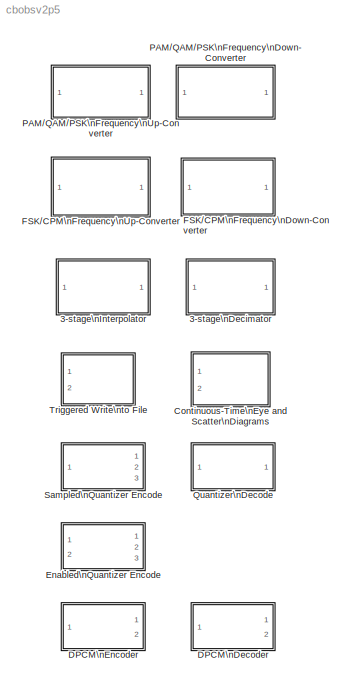
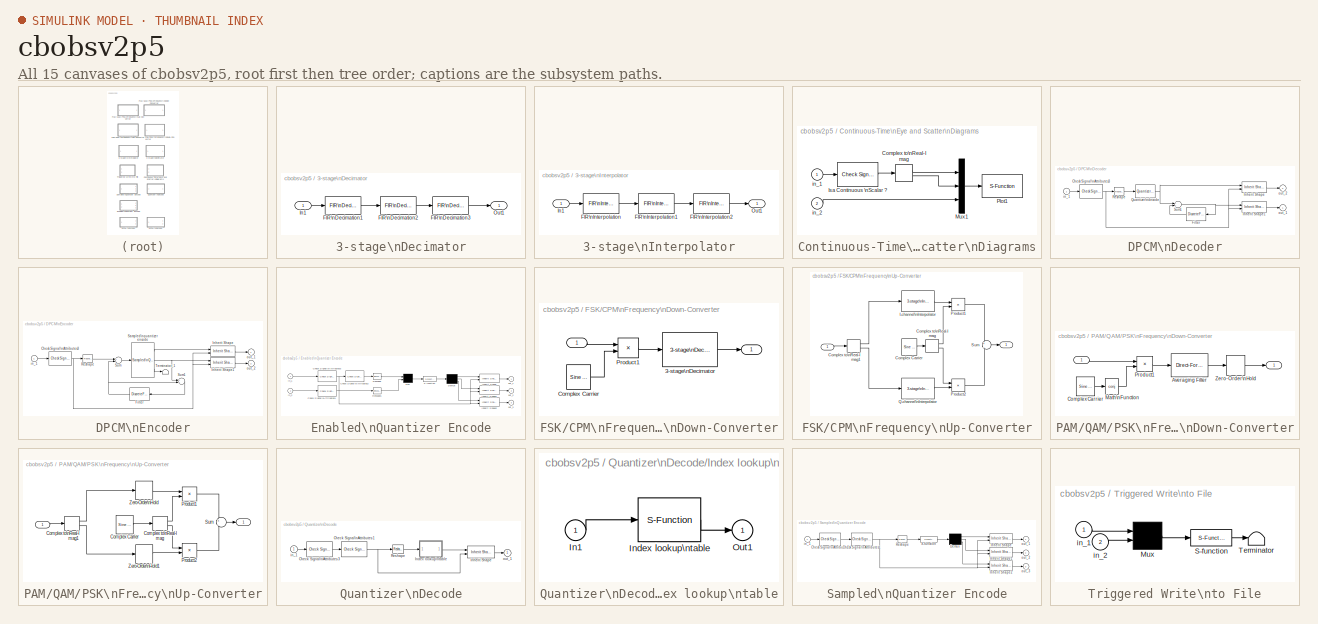
[diagram: thumbnail index - all 15 canvases of the model, root first then tree order]
MODEL cbobsv2p5
KIND library
BLOCK [SubSystem] 3-stage\nDecimator
  MaskCallbackString = ||
  MaskDescription = Performs decimation on the input signal.  The block uses multi-stage FIR filtering to eliminate aliasing, because using multiple stages is more efficient than using a single stage.\n\nFor most efficient results, large decimation factors should have at least three factors.
  MaskDisplay = disp('3-stage\\nDecimator')
  MaskEnableString = on,on,on
  MaskIconFrame = on
  MaskIconOpaque = on
  MaskIconRotate = none
  MaskIconUnits = autoscale
  MaskInitialization = dec_params = commblkdecimtr(gcb,'init');
  MaskPromptString = Decimation factor:|Input sample time (s):|Maximum signal frequency (Hz):
  MaskSelfModifiable = on
  MaskStyleString = edit,edit,edit
  MaskToolTipString = on,on,on
  MaskTunableValueString = off,off,off
  MaskType = 3-stage Decimator
  MaskValueString = 10|1/10000|450
  MaskVarAliasString = ,,
  MaskVariables = decFactor=@1;Tin=@2;Fmax=@3;
  MaskVisibilityString = on,on,on
  Ports = [1, 1]
  TreatAsAtomicUnit = off
BLOCK [Reference] 3-stage\nDecimator/FIR\nDecimation1  REF=dspmlti3/FIR\nDecimation
  D = dec_params.decFact1
  Ports = [1, 1]
  SourceBlock = dspmlti3/FIR\nDecimation
  SourceType = FIR Decimation
  framing = Maintain input frame size
  h = remez(dec_params.order1, [0 dec_params.Fpass1 dec_params.Fstop1 1], [1 1 0 0])
  outputBufInitCond = 0
BLOCK [Reference] 3-stage\nDecimator/FIR\nDecimation2  REF=dspmlti3/FIR\nDecimation
  D = dec_params.decFact2
  Ports = [1, 1]
  SourceBlock = dspmlti3/FIR\nDecimation
  SourceType = FIR Decimation
  framing = Maintain input frame size
  h = remez(dec_params.order2, [0 dec_params.Fpass2 dec_params.Fstop2 1], [1 1 0 0])
  outputBufInitCond = 0
BLOCK [Reference] 3-stage\nDecimator/FIR\nDecimation3  REF=dspmlti3/FIR\nDecimation
  D = dec_params.decFact3
  Ports = [1, 1]
  SourceBlock = dspmlti3/FIR\nDecimation
  SourceType = FIR Decimation
  framing = Maintain input frame size
  h = remez(dec_params.order3, [0 dec_params.Fpass3 dec_params.Fstop3 1], [1 1 0 0])
  outputBufInitCond = 0
BLOCK [Inport] 3-stage\nDecimator/In1
BLOCK [Outport] 3-stage\nDecimator/Out1
BLOCK [SubSystem] 3-stage\nInterpolator
  MaskCallbackString = ||
  MaskDescription = Performs a interpolation on the input signal.  The block uses multi-stage FIR filtering to eliminate spectral copies because using multiple stages is more efficient than using a single stage.\n\nFor most efficient results, large interpolation factors should have at least three factors.
  MaskDisplay = disp('3-stage\\n Interpolator')
  MaskEnableString = on,on,on
  MaskIconFrame = on
  MaskIconOpaque = on
  MaskIconRotate = none
  MaskIconUnits = autoscale
  MaskInitialization = int_params = commblkintrpltr(gcb,'init');
  MaskPromptString = Interpolation factor:|Input sample time (s):|Maximum signal frequency (Hz):
  MaskSelfModifiable = on
  MaskStyleString = edit,edit,edit
  MaskToolTipString = on,on,on
  MaskTunableValueString = off,off,off
  MaskType = 3-stage Interpolator
  MaskValueString = 10|1/1000|450
  MaskVarAliasString = ,,
  MaskVariables = intFactor=@1;Tin=@2;Fmax=@3;
  MaskVisibilityString = on,on,on
  Ports = [1, 1]
  TreatAsAtomicUnit = off
BLOCK [Reference] 3-stage\nInterpolator/FIR\nInterpolation  REF=dspmlti3/FIR\nInterpolation
  L = int_params.intFact1
  Ports = [1, 1]
  SourceBlock = dspmlti3/FIR\nInterpolation
  SourceType = FIR Interpolation
  framing = Maintain input frame size
  h = remez(int_params.order1, [0 int_params.Fpass1 int_params.Fstop1 1], [1 1 0 0]) * int_params.intFact1
  outputBufInitCond = 0
BLOCK [Reference] 3-stage\nInterpolator/FIR\nInterpolation1  REF=dspmlti3/FIR\nInterpolation
  L = int_params.intFact2
  Ports = [1, 1]
  SourceBlock = dspmlti3/FIR\nInterpolation
  SourceType = FIR Interpolation
  framing = Maintain input frame size
  h = remez(int_params.order2, [0 int_params.Fpass2 int_params.Fstop2 1], [1 1 0 0]) * int_params.intFact2
  outputBufInitCond = 0
BLOCK [Reference] 3-stage\nInterpolator/FIR\nInterpolation2  REF=dspmlti3/FIR\nInterpolation
  L = int_params.intFact3
  Ports = [1, 1]
  SourceBlock = dspmlti3/FIR\nInterpolation
  SourceType = FIR Interpolation
  framing = Maintain input frame size
  h = remez(int_params.order3, [0 int_params.Fpass3 int_params.Fstop3 1], [1 1 0 0]) * int_params.intFact3
  outputBufInitCond = 0
BLOCK [Inport] 3-stage\nInterpolator/In1
BLOCK [Outport] 3-stage\nInterpolator/Out1
BLOCK [SubSystem] Continuous-Time\nEye and Scatter\nDiagrams
  CopyFcn = eyediasi2([],[],[],'CopyBlock')
  DeleteFcn = eyediasi2([],[],[],'DeleteBlock')
  LoadFcn = eyediasi2([],[],[],'LoadBlock')
  MaskCallbackString = ||||commblkeyescatcont(gcb,'cbDiagram_type');|||
  MaskDescription = Create an eye diagram with or without a scatter diagram or an X-Y diagram depending on Diagram type parameter.  Use the trigger input to determine the decision time for the scatter plot.
  MaskDisplay = plot(0,0,100,100,[5 45 45 5 5 5 5+40*[0:1/15:1] 5+40*[1:-1/15:0] 5+40*[0:1/15:1] 5+40*[1:-1/15:0]], [35 35 95 95 35 65 sin([0:1/15:1]*pi)*25+65 sin(-[0:1/15:1]*pi)*25+65 sin([0:1/15:1]*pi)*17+65 sin(-[0:1/15:1]*pi)*18+65]*.95+3 ,a,b, NaN, NaN, x+50,y+37,x+50,y+52,x+50,y+67,x+50,y+82, x+62,y+37,x+62,y+52,x+62,y+67,x+62,y+82, x+73,y+37,x+73,y+52,x+73,y+67,x+73,y+82, x+85,y+37,x+85,y+52,x+85,y+67,x+8...<+44ch>
  MaskEnableString = on,on,on,on,on,on,off,off
  MaskHelp = helpview(commbhelp)
  MaskIconFrame = on
  MaskIconOpaque = on
  MaskIconRotate = port
  MaskIconUnits = autoscale
  MaskInitialization = [a,b]=trigicon(0,25,get_param(gcb,'orientation'),2);\nx = [2 8 5 2 8 5 5 5];\ny = [2 8 5 8 2 5 8 2];\n[eStr outparams] = commblkeyescatcont(gcb,'init');\nif(eStr .ecode ~= 0)\n   error(eStr .emsg);\nend\n
  MaskPromptString = Trace period:|Trace offset:|Lower and upper bounds of diagram (2-element vector):|Number of saved traces:|Diagram type:|Line type for eye diagram:|Line type for scatter diagram:|Line type for X-Y diagram:
  MaskSelfModifiable = on
  MaskStyleString = edit,edit,edit,edit,popup(Eye Diagram|Scatter Diagram|Eye and Scatter Diagrams|X-Y Diagram|Eye and X-Y Diagrams),edit,edit,edit
  MaskToolTipString = on,on,on,on,on,on,on,on
  MaskTunableValueString = off,off,off,off,off,off,off,off
  MaskType = Continuous-Time Eye and Scatter Diagrams
  MaskValueString = 1|0|[-1.5 1.5]|5|Eye Diagram|b-/r-|b.|b-
  MaskVarAliasString = ,,,,,,,
  MaskVariables = time_range=@1;time_offset=@2;boundary=@3;kept_length=@4;diagram_type=&5;eye_line=&6;scatter_line=&7;two_d_line=&8;
  MaskVisibilityString = on,on,on,on,on,on,off,off
  NameChangeFcn = eyediasi2([],[],[],'NameChange')
  Ports = [2]
  StartFcn = eyediasi2([],[],[],'Start')
  StopFcn = eyediasi2([],[],[],'Stop')
  TreatAsAtomicUnit = off
BLOCK [ComplexToRealImag] Continuous-Time\nEye and Scatter\nDiagrams/Complex to\nReal-Imag
  Output = Real and imag
  Ports = [1, 2]
BLOCK [Reference] Continuous-Time\nEye and Scatter\nDiagrams/Isa Continuous \nScalar ?  REF=dspsigattribs/Check Signal\nAttributes
  Complexity = Ignore
  DatatypeCheckMethod = Is not...
  DatatypeGeneral = Boolean
  Dimensions = Scalar (1-D or 2-D)
  DimsCheckMethod = Is...
  DtypeFixedSpecific = Any fixed-point
  DtypeFloatSpecific = Any floating-point
  DtypeIntSpecific = Any integer
  Frame = Sample-based
  Ports = [1, 1]
  SampleMode = Continuous
  SigAttribCheckMethod = Does not match attributes exactly
  SourceBlock = dspsigattribs/Check Signal\nAttributes
  SourceType = Check Signal Attributes
BLOCK [Mux] Continuous-Time\nEye and Scatter\nDiagrams/Mux1
  DisplayOption = bar
  Inputs = 3
  Ports = [3, 1]
BLOCK [S-Function] Continuous-Time\nEye and Scatter\nDiagrams/Plot1
  FunctionName = eyediasi2
  MaskIconFrame = on
  MaskIconOpaque = on
  MaskIconRotate = none
  MaskIconUnits = autoscale
  MaskSelfModifiable = on
  Parameters = time_range, time_offset, boundary, kept_length, diagram_type, eye_line, scatter_line, two_d_line
  Ports = [1]
BLOCK [Inport] Continuous-Time\nEye and Scatter\nDiagrams/in_1
BLOCK [Inport] Continuous-Time\nEye and Scatter\nDiagrams/in_2
  Port = 2
BLOCK [SubSystem] DPCM\nDecoder
  MaskCallbackString = |||
  MaskDescription = Input the DPCM coded index. Output DPCM decodes to the 1st outport and quantization decode to the 2nd outport.\n\nThe input must be a scalar signal.
  MaskDisplay = disp('DPCM\\ndecoder')
  MaskEnableString = on,on,on,on
  MaskHelp = helpview(commbhelp)
  MaskIconFrame = on
  MaskIconOpaque = on
  MaskIconRotate = none
  MaskIconUnits = autoscale
  MaskPromptString = Predictor numerator:|Predictor denominator:|Quantization codebook:|Sample time:
  MaskStyleString = edit,edit,edit,edit
  MaskToolTipString = on,on,on,on
  MaskTunableValueString = on,on,on,on
  MaskType = DPCM Decoder
  MaskValueString = [0 .9963]|1|[-.0848 -.029 .0298 .0853]|.1
  MaskVarAliasString = ,,,
  MaskVariables = num=@1;den=@2;codebook=@3;sample_time=@4;
  MaskVisibilityString = on,on,on,on
  Ports = [1, 2]
  TreatAsAtomicUnit = off
BLOCK [Reference] DPCM\nDecoder/Check Signal\nAttributes3  REF=dspsigattribs/Check Signal\nAttributes
  Complexity = Ignore
  DatatypeCheckMethod = Ignore
  DatatypeGeneral = Boolean
  Dimensions = Scalar (1-D or 2-D)
  DimsCheckMethod = Is...
  DtypeFixedSpecific = Any fixed-point
  DtypeFloatSpecific = Any floating-point
  DtypeIntSpecific = Any integer
  Frame = Ignore
  Ports = [1, 1]
  SampleMode = Ignore
  SigAttribCheckMethod = Does not match attributes exactly
  SourceBlock = dspsigattribs/Check Signal\nAttributes
  SourceType = Check Signal Attributes
BLOCK [DiscreteFilter] DPCM\nDecoder/Filter
  Denominator = den
  MaskIconFrame = on
  MaskIconOpaque = on
  MaskIconRotate = none
  MaskIconUnits = autoscale
  Numerator = num
  SampleTime = sample_time
BLOCK [Reference] DPCM\nDecoder/Inherit Shape  REF=commblksprivate/Inherit Shape
  Ports = [2, 1]
  SourceBlock = commblksprivate/Inherit Shape
  SourceType = Inherit Shape
BLOCK [Reference] DPCM\nDecoder/Inherit Shape1  REF=commblksprivate/Inherit Shape
  Ports = [2, 1]
  SourceBlock = commblksprivate/Inherit Shape
  SourceType = Inherit Shape
BLOCK [Reference] DPCM\nDecoder/Quantizer\ndecode  REF=commsrccod2/Quantizer\nDecode
  Ports = [1, 1]
  SourceBlock = commsrccod2/Quantizer\nDecode
  SourceType = Quantizer Decode
  codebook = codebook
BLOCK [Reference] DPCM\nDecoder/Reshape  REF=simulink3/Signals\n& Systems/Reshape
  OutputDimensionality = 1-D array
  OutputDimensions = [1,1]
  Ports = [1, 1]
  SourceBlock = simulink3/Signals\n& Systems/Reshape
  SourceType = Reshape
BLOCK [Sum] DPCM\nDecoder/Sum1
  Ports = [2, 1]
BLOCK [Inport] DPCM\nDecoder/in_1
BLOCK [Outport] DPCM\nDecoder/out_1
  InitialOutput = 0
BLOCK [Outport] DPCM\nDecoder/out_2
  InitialOutput = 0
  Port = 2
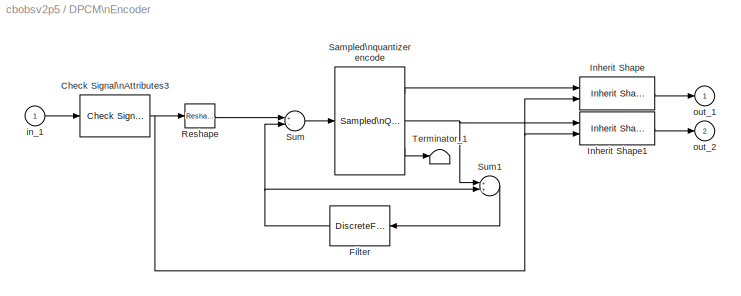
BLOCK [SubSystem] DPCM\nEncoder
  MaskCallbackString = ||||
  MaskDescription = Output the DPCM encoded index to the 1st outport and the quantization recovered value to the 2nd outport.\n\nThe input must be a scalar signal.
  MaskDisplay = disp('DPCM\\nencoder')
  MaskEnableString = on,on,on,on,on
  MaskHelp = helpview(commbhelp)
  MaskIconFrame = on
  MaskIconOpaque = on
  MaskIconRotate = none
  MaskIconUnits = autoscale
  MaskPromptString = Predictor numerator:|Predictor denominator:|Quantization partition:|Quantization codebook:|Sample time:
  MaskStyleString = edit,edit,edit,edit,edit
  MaskToolTipString = on,on,on,on,on
  MaskTunableValueString = on,on,on,on,on
  MaskType = DPCM Encoder
  MaskValueString = [0 .9963]|1|[-.0569 .0004 .0576]|[-.0848 -.029 .0298 .0853]|.1
  MaskVarAliasString = ,,,,
  MaskVariables = num=@1;den=@2;partition=@3;codebook=@4;sample_time=@5;
  MaskVisibilityString = on,on,on,on,on
  Ports = [1, 2]
  TreatAsAtomicUnit = off
BLOCK [Reference] DPCM\nEncoder/Check Signal\nAttributes3  REF=dspsigattribs/Check Signal\nAttributes
  Complexity = Ignore
  DatatypeCheckMethod = Ignore
  DatatypeGeneral = Boolean
  Dimensions = Scalar (1-D or 2-D)
  DimsCheckMethod = Is...
  DtypeFixedSpecific = Any fixed-point
  DtypeFloatSpecific = Any floating-point
  DtypeIntSpecific = Any integer
  Frame = Ignore
  Ports = [1, 1]
  SampleMode = Ignore
  SigAttribCheckMethod = Does not match attributes exactly
  SourceBlock = dspsigattribs/Check Signal\nAttributes
  SourceType = Check Signal Attributes
BLOCK [DiscreteFilter] DPCM\nEncoder/Filter
  Denominator = den
  MaskIconFrame = on
  MaskIconOpaque = on
  MaskIconRotate = none
  MaskIconUnits = autoscale
  Numerator = num
  SampleTime = sample_time
BLOCK [Reference] DPCM\nEncoder/Inherit Shape  REF=commblksprivate/Inherit Shape
  Ports = [2, 1]
  SourceBlock = commblksprivate/Inherit Shape
  SourceType = Inherit Shape
BLOCK [Reference] DPCM\nEncoder/Inherit Shape1  REF=commblksprivate/Inherit Shape
  Ports = [2, 1]
  SourceBlock = commblksprivate/Inherit Shape
  SourceType = Inherit Shape
BLOCK [Reference] DPCM\nEncoder/Reshape  REF=simulink3/Signals\n& Systems/Reshape
  OutputDimensionality = 1-D array
  OutputDimensions = [1,1]
  Ports = [1, 1]
  SourceBlock = simulink3/Signals\n& Systems/Reshape
  SourceType = Reshape
BLOCK [Reference] DPCM\nEncoder/Sampled\nquantizer encode  REF=commsrccod2/Sampled\nQuantizer Encode
  Ports = [1, 3]
  SourceBlock = commsrccod2/Sampled\nQuantizer Encode
  SourceType = Sampled Quantizer Encode
  codebook = codebook
  n = 1
  partition = partition
  sample_time = sample_time
BLOCK [Sum] DPCM\nEncoder/Sum
  Inputs = +-
  Ports = [2, 1]
BLOCK [Sum] DPCM\nEncoder/Sum1
  Ports = [2, 1]
BLOCK [Terminator] DPCM\nEncoder/Terminator_1
BLOCK [Inport] DPCM\nEncoder/in_1
BLOCK [Outport] DPCM\nEncoder/out_1
  InitialOutput = 0
BLOCK [Outport] DPCM\nEncoder/out_2
  InitialOutput = 0
  Port = 2
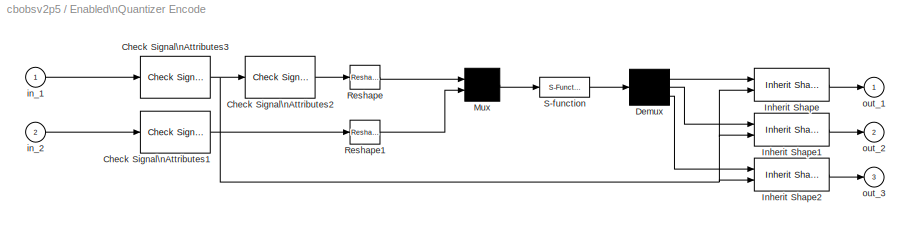
BLOCK [SubSystem] Enabled\nQuantizer Encode
  MaskCallbackString = ||
  MaskDescription = Triggered by the 2nd input signal, this block quantizes an analog signal to (1) digital signal, (2) quantization value, and (3) distortion.\n\nThe first input can be either a scalar, a sample-based vector, or a frame-based row vector.  Each vector element is processed independently.\n\nThe trigger input must be a scalar.
  MaskDisplay = plot(0,0,100,100,x,y);disp('Quantizer')
  MaskEnableString = on,on,on
  MaskHelp = helpview(commbhelp)
  MaskIconFrame = on
  MaskIconOpaque = on
  MaskIconRotate = none
  MaskIconUnits = autoscale
  MaskInitialization = [x,y]=trigicon(0,25,get_param(gcb,'orientation'),1);\n
  MaskPromptString = Quantization partition:|Quantization codebook:|Input signal vector length:
  MaskStyleString = edit,edit,edit
  MaskToolTipString = on,on,on
  MaskTunableValueString = on,on,on
  MaskType = Enabled Quantizer Encode
  MaskValueString = [-.75 -.25 .25 .75]|[-.825 -.5 0 .5 .825]|2
  MaskVarAliasString = ,,
  MaskVariables = partition=@1;codebook=@2;n=@3;
  MaskVisibilityString = on,on,on
  Ports = [2, 3]
  TreatAsAtomicUnit = off
BLOCK [Reference] Enabled\nQuantizer Encode/Check Signal\nAttributes1  REF=dspsigattribs/Check Signal\nAttributes
  Complexity = Ignore
  DatatypeCheckMethod = Ignore
  DatatypeGeneral = Boolean
  Dimensions = Scalar (1-D or 2-D)
  DimsCheckMethod = Is...
  DtypeFixedSpecific = Any fixed-point
  DtypeFloatSpecific = Any floating-point
  DtypeIntSpecific = Any integer
  Frame = Ignore
  Ports = [1, 1]
  SampleMode = Ignore
  SigAttribCheckMethod = Does not match attributes exactly
  SourceBlock = dspsigattribs/Check Signal\nAttributes
  SourceType = Check Signal Attributes
BLOCK [Reference] Enabled\nQuantizer Encode/Check Signal\nAttributes2  REF=dspsigattribs/Check Signal\nAttributes
  Complexity = Ignore
  DatatypeCheckMethod = Ignore
  DatatypeGeneral = Boolean
  Dimensions = Column vector (2-D)
  DimsCheckMethod = Is...
  DtypeFixedSpecific = Any fixed-point
  DtypeFloatSpecific = Any floating-point
  DtypeIntSpecific = Any integer
  Frame = Frame-based
  Ports = [1, 1]
  SampleMode = Ignore
  SigAttribCheckMethod = Matches attributes exactly
  SourceBlock = dspsigattribs/Check Signal\nAttributes
  SourceType = Check Signal Attributes
BLOCK [Reference] Enabled\nQuantizer Encode/Check Signal\nAttributes3  REF=dspsigattribs/Check Signal\nAttributes
  Complexity = Ignore
  DatatypeCheckMethod = Ignore
  DatatypeGeneral = Boolean
  Dimensions = Full matrix (2-D)
  DimsCheckMethod = Is...
  DtypeFixedSpecific = Any fixed-point
  DtypeFloatSpecific = Any floating-point
  DtypeIntSpecific = Any integer
  Frame = Ignore
  Ports = [1, 1]
  SampleMode = Ignore
  SigAttribCheckMethod = Matches attributes exactly
  SourceBlock = dspsigattribs/Check Signal\nAttributes
  SourceType = Check Signal Attributes
BLOCK [Demux] Enabled\nQuantizer Encode/Demux
  Outputs = [n n n]
  Ports = [1, 3]
BLOCK [Reference] Enabled\nQuantizer Encode/Inherit Shape  REF=commblksprivate/Inherit Shape
  Ports = [2, 1]
  SourceBlock = commblksprivate/Inherit Shape
  SourceType = Inherit Shape
BLOCK [Reference] Enabled\nQuantizer Encode/Inherit Shape1  REF=commblksprivate/Inherit Shape
  Ports = [2, 1]
  SourceBlock = commblksprivate/Inherit Shape
  SourceType = Inherit Shape
BLOCK [Reference] Enabled\nQuantizer Encode/Inherit Shape2  REF=commblksprivate/Inherit Shape
  Ports = [2, 1]
  SourceBlock = commblksprivate/Inherit Shape
  SourceType = Inherit Shape
BLOCK [Mux] Enabled\nQuantizer Encode/Mux
  Inputs = [n 1]
  Ports = [2, 1]
BLOCK [Reference] Enabled\nQuantizer Encode/Reshape  REF=simulink3/Signals\n& Systems/Reshape
  OutputDimensionality = 1-D array
  OutputDimensions = [1,1]
  Ports = [1, 1]
  SourceBlock = simulink3/Signals\n& Systems/Reshape
  SourceType = Reshape
BLOCK [Reference] Enabled\nQuantizer Encode/Reshape1  REF=simulink3/Signals\n& Systems/Reshape
  OutputDimensionality = 1-D array
  OutputDimensions = [1,1]
  Ports = [1, 1]
  SourceBlock = simulink3/Signals\n& Systems/Reshape
  SourceType = Reshape
BLOCK [S-Function] Enabled\nQuantizer Encode/S-function
  FunctionName = simquan
  Parameters = n, partition, codebook
  Ports = [1, 1]
BLOCK [Inport] Enabled\nQuantizer Encode/in_1
BLOCK [Inport] Enabled\nQuantizer Encode/in_2
  Port = 2
BLOCK [Outport] Enabled\nQuantizer Encode/out_1
  InitialOutput = 0
BLOCK [Outport] Enabled\nQuantizer Encode/out_2
  InitialOutput = 0
  Port = 2
BLOCK [Outport] Enabled\nQuantizer Encode/out_3
  InitialOutput = 0
  Port = 3
BLOCK [SubSystem] FSK//CPM\nFrequency\nDown-Converter
  MaskCallbackString = commblkfskdowncon(gcb,'cbModType');|||||||
  MaskDescription = The FSK/CPM Frequency Down-Converter translates the frequency of the passband input signal to complex baseband.  It also decimates the signal in order to prevent aliasing.\n\nThe input signal must be a sample-based scalar.
  MaskDisplay = disp('FSK/CPM\\nFrequency\\nDown-Converter');
  MaskEnableString = on,on,on,on,on,on,on,on
  MaskIconFrame = on
  MaskIconOpaque = on
  MaskIconRotate = none
  MaskIconUnits = autoscale
  MaskInitialization = Fmax = commblkfskdowncon(gcb,'init');
  MaskPromptString = Modulation type:|M-ary number:|Frequency separation (Hz):|Symbol period (s):|Carrier frequency (Hz):|Carrier phase (rad):|Input sample time (s):|Output sample time (s):
  MaskSelfModifiable = on
  MaskStyleString = popup(FSK|CPM),edit,edit,edit,edit,edit,edit,edit
  MaskToolTipString = on,on,on,on,on,on,on,on
  MaskTunableValueString = off,off,off,off,off,off,off,off
  MaskType = FSK/CPM Frequency Down-Converter
  MaskValueString = FSK|8|100|1/100|3000|0|1/10000|1/1000
  MaskVarAliasString = ,,,,,,,
  MaskVariables = modType=&1;M=@2;freqSep=@3;td=@4;Fc=@5;Ph=@6;Tin=@7;Tout=@8;
  MaskVisibilityString = on,on,on,on,on,on,on,on
  Ports = [1, 1]
  TreatAsAtomicUnit = off
BLOCK [Inport] FSK//CPM\nFrequency\nDown-Converter/ 
  SampleTime = Tin
BLOCK [Outport] FSK//CPM\nFrequency\nDown-Converter/  
BLOCK [Reference] FSK//CPM\nFrequency\nDown-Converter/3-stage\nDecimator  REF=commblksprivate/3-stage\nDecimator
  Fmax = Fmax
  Ports = [1, 1]
  SourceBlock = commblksprivate/3-stage\nDecimator
  SourceType = 3-stage Decimator
  Tin = Tin
  decFactor = Tout / Tin
BLOCK [Reference] FSK//CPM\nFrequency\nDown-Converter/Complex Carrier  REF=dspsrcs4/Sine Wave
  Amplitude = sqrt(2)
  CompMethod = Trigonometric fcn
  Frequency = -Fc
  OutComplex = Complex
  Phase = -Ph
  Ports = [0, 1]
  ResetState = Restart at time zero
  SampleMode = Discrete
  SampleTime = Tin
  SamplesPerFrame = 1
  SourceBlock = dspsrcs4/Sine Wave
  SourceType = Sine Wave
  TableSize = Speed
  dType = Double
BLOCK [Product] FSK//CPM\nFrequency\nDown-Converter/Product1
  Ports = [2, 1]
  RndMeth = Floor
BLOCK [SubSystem] FSK//CPM\nFrequency\nUp-Converter
  MaskCallbackString = commblkfskupcon(gcb,'cbModType');|||||||
  MaskDescription = The FSK/CPM Frequency Up-Converter translates the frequency of the baseband input FSK or CPM signal to the carrier frequency.\nIt also interpolates the signal in order to prevent aliasing.\n\nThe input signal must be a sample-based scalar.
  MaskDisplay = disp('FSK/CPM\\nFrequency\\nUp-Converter');
  MaskEnableString = on,on,on,on,on,on,on,on
  MaskIconFrame = on
  MaskIconOpaque = on
  MaskIconRotate = none
  MaskIconUnits = autoscale
  MaskInitialization = Fmax = commblkfskupcon(gcb,'init');\n
  MaskPromptString = Modulation type:|M-ary number:|Frequency separation (Hz):|Symbol period (s):|Carrier frequency (Hz):|Carrier phase (rad):|Input sample time (s):|Output sample time (s):
  MaskSelfModifiable = on
  MaskStyleString = popup(FSK|CPM),edit,edit,edit,edit,edit,edit,edit
  MaskToolTipString = on,on,on,on,on,on,on,on
  MaskTunableValueString = off,off,off,off,off,off,off,off
  MaskType = FSK/CPM Frequency Up-Converter
  MaskValueString = FSK|8|100|1/100|3000|0|1/1000|1/10000
  MaskVarAliasString = ,,,,,,,
  MaskVariables = modType=&1;M=@2;freqSep=@3;td=@4;Fc=@5;Ph=@6;Tin=@7;Tout=@8;
  MaskVisibilityString = on,on,on,on,on,on,on,on
  Ports = [1, 1]
  TreatAsAtomicUnit = off
BLOCK [Inport] FSK//CPM\nFrequency\nUp-Converter/ 
BLOCK [Outport] FSK//CPM\nFrequency\nUp-Converter/  
BLOCK [Reference] FSK//CPM\nFrequency\nUp-Converter/Complex Carrier  REF=dspsrcs4/Sine Wave
  Amplitude = sqrt(2)
  CompMethod = Trigonometric fcn
  Frequency = Fc
  OutComplex = Complex
  Phase = Ph
  Ports = [0, 1]
  ResetState = Restart at time zero
  SampleMode = Discrete
  SampleTime = Tout
  SamplesPerFrame = 1
  SourceBlock = dspsrcs4/Sine Wave
  SourceType = Sine Wave
  TableSize = Speed
  dType = Double
BLOCK [ComplexToRealImag] FSK//CPM\nFrequency\nUp-Converter/Complex to\nReal-Imag
  Output = Real and imag
  Ports = [1, 2]
BLOCK [ComplexToRealImag] FSK//CPM\nFrequency\nUp-Converter/Complex to\nReal-Imag1
  Output = Real and imag
  Ports = [1, 2]
BLOCK [Reference] FSK//CPM\nFrequency\nUp-Converter/I-channel\nInterpolator  REF=commblksprivate/3-stage\nInterpolator
  Fmax = Fmax
  Ports = [1, 1]
  SourceBlock = commblksprivate/3-stage\nInterpolator
  SourceType = 3-stage Interpolator
  Tin = Tin
  intFactor = Tin / Tout
BLOCK [Product] FSK//CPM\nFrequency\nUp-Converter/Product1
  Ports = [2, 1]
  RndMeth = Floor
BLOCK [Product] FSK//CPM\nFrequency\nUp-Converter/Product2
  Ports = [2, 1]
  RndMeth = Floor
BLOCK [Reference] FSK//CPM\nFrequency\nUp-Converter/Q-channel\nInterpolator  REF=commblksprivate/3-stage\nInterpolator
  Fmax = Fmax
  Ports = [1, 1]
  SourceBlock = commblksprivate/3-stage\nInterpolator
  SourceType = 3-stage Interpolator
  Tin = Tin
  intFactor = Tin / Tout
BLOCK [Sum] FSK//CPM\nFrequency\nUp-Converter/Sum
  IconShape = round
  Inputs = +|-
  Ports = [2, 1]
BLOCK [SubSystem] PAM//QAM//PSK\nFrequency\nDown-Converter
  MaskCallbackString = |||
  MaskDescription = The PAM/QAM/PSK Frequency Down-Converter translates the frequency of the input signal to complex baseband.  It also decimates the signal to a lower sampling frequency.\n\nThe input signal must be a sample-based scalar.
  MaskDisplay = disp('PAM/QAM/PSK\\nFrequency\\nDown-Converter');
  MaskEnableString = on,on,on,on
  MaskIconFrame = on
  MaskIconOpaque = on
  MaskIconRotate = none
  MaskIconUnits = autoscale
  MaskInitialization = if (Tin>=1/(2*(Fc+1/Tout))) error('The reciprocal of the input sample time must be greater than twice the sum of the carrier frequency and the reciprocal of the output sample time.'); end;\n\nif (Tout <= 1/Fc) error('The reciprocal of the output sample time must be less than the carrier frequency.'); end;\n\nif (Tin>=Tout) error('The input sample time must be less than the output sample time.'); e...<+5ch>
  MaskPromptString = Carrier frequency (Hz):|Carrier phase (rad):|Input sample time:|Output sample time:
  MaskStyleString = edit,edit,edit,edit
  MaskToolTipString = on,on,on,on
  MaskTunableValueString = on,on,on,on
  MaskType = PAM/QAM/PSK Frequency Down-Converter
  MaskValueString = 3000|0|1/8000|1/100
  MaskVarAliasString = ,,,
  MaskVariables = Fc=@1;Ph=@2;Tin=@3;Tout=@4;
  MaskVisibilityString = on,on,on,on
  Ports = [1, 1]
  TreatAsAtomicUnit = off
BLOCK [Inport] PAM//QAM//PSK\nFrequency\nDown-Converter/ 
  SampleTime = Tin
BLOCK [Outport] PAM//QAM//PSK\nFrequency\nDown-Converter/  
BLOCK [Reference] PAM//QAM//PSK\nFrequency\nDown-Converter/Averaging Filter  REF=dsparch3/Direct-Form II\nTranspose Filter
  Ports = [1, 1]
  SourceBlock = dsparch3/Direct-Form II\nTranspose Filter
  SourceType = Direct-Form II Transpose Filter
  den = 1
  ic = 0
  num = (Tin/Tout)*ones(1,floor(Tout/Tin))
BLOCK [Reference] PAM//QAM//PSK\nFrequency\nDown-Converter/Complex Carrier  REF=dspsrcs4/Sine Wave
  Amplitude = sqrt(2)
  CompMethod = Trigonometric fcn
  Frequency = Fc
  OutComplex = Complex
  Phase = Ph
  Ports = [0, 1]
  ResetState = Restart at time zero
  SampleMode = Discrete
  SampleTime = Tin
  SamplesPerFrame = 1
  SourceBlock = dspsrcs4/Sine Wave
  SourceType = Sine Wave
  TableSize = Speed
  dType = Double
BLOCK [Math] PAM//QAM//PSK\nFrequency\nDown-Converter/Math\nFunction
  Operator = conj
  Ports = [1, 1]
BLOCK [Product] PAM//QAM//PSK\nFrequency\nDown-Converter/Product1
  Ports = [2, 1]
  RndMeth = Floor
BLOCK [ZeroOrderHold] PAM//QAM//PSK\nFrequency\nDown-Converter/Zero-Order\nHold
  SampleTime = Tout
BLOCK [SubSystem] PAM//QAM//PSK\nFrequency\nUp-Converter
  MaskCallbackString = |||
  MaskDescription = The PAM/QAM/PSK Frequency Up-Converter translates the frequency of the baseband input signal to the carrier frequency.  It also resamples the signal to a higher sampling frequency.\n\nThe input signal must be a sample-based scalar.
  MaskDisplay = disp('PAM/QAM/PSK\\nFrequency\\nUp-Converter');
  MaskEnableString = on,on,on,on
  MaskIconFrame = on
  MaskIconOpaque = on
  MaskIconRotate = none
  MaskIconUnits = autoscale
  MaskInitialization = if (Tout>=1/(2*(Fc+1/Tin))) error('The reciprocal of the output sample time must be greater than twice the sum of the carrier frequency and the reciprocal of the input sample time.'); end;\n\nif (Tin <= 1/Fc) error('The reciprocal of the input sample time must be less than the carrier frequency.'); end;\n\nif (Tin<=Tout) error('The input sample time must be greater than the output sample time.'); ...<+6ch>
  MaskPromptString = Carrier frequency (Hz):|Carrier phase (rad):|Input sample time:|Output sample time:
  MaskStyleString = edit,edit,edit,edit
  MaskToolTipString = on,on,on,on
  MaskTunableValueString = on,on,on,on
  MaskType = PAM/QAM/PSK Frequency Up-Converter
  MaskValueString = 3000|0|1/100|1/8000
  MaskVarAliasString = ,,,
  MaskVariables = Fc=@1;Ph=@2;Tin=@3;Tout=@4;
  MaskVisibilityString = on,on,on,on
  Ports = [1, 1]
  TreatAsAtomicUnit = off
BLOCK [Inport] PAM//QAM//PSK\nFrequency\nUp-Converter/ 
BLOCK [Outport] PAM//QAM//PSK\nFrequency\nUp-Converter/  
BLOCK [Reference] PAM//QAM//PSK\nFrequency\nUp-Converter/Complex Carrier  REF=dspsrcs4/Sine Wave
  Amplitude = sqrt(2)
  CompMethod = Trigonometric fcn
  Frequency = Fc
  OutComplex = Complex
  Phase = Ph
  Ports = [0, 1]
  ResetState = Restart at time zero
  SampleMode = Discrete
  SampleTime = Tout
  SamplesPerFrame = 1
  SourceBlock = dspsrcs4/Sine Wave
  SourceType = Sine Wave
  TableSize = Speed
  dType = Double
BLOCK [ComplexToRealImag] PAM//QAM//PSK\nFrequency\nUp-Converter/Complex to\nReal-Imag
  Output = Real and imag
  Ports = [1, 2]
BLOCK [ComplexToRealImag] PAM//QAM//PSK\nFrequency\nUp-Converter/Complex to\nReal-Imag1
  Output = Real and imag
  Ports = [1, 2]
BLOCK [Product] PAM//QAM//PSK\nFrequency\nUp-Converter/Product1
  Ports = [2, 1]
  RndMeth = Floor
BLOCK [Product] PAM//QAM//PSK\nFrequency\nUp-Converter/Product2
  Ports = [2, 1]
  RndMeth = Floor
BLOCK [Sum] PAM//QAM//PSK\nFrequency\nUp-Converter/Sum
  IconShape = round
  Inputs = +|-
  Ports = [2, 1]
BLOCK [ZeroOrderHold] PAM//QAM//PSK\nFrequency\nUp-Converter/Zero-Order\nHold
  SampleTime = Tout
BLOCK [ZeroOrderHold] PAM//QAM//PSK\nFrequency\nUp-Converter/Zero-Order\nHold1
  SampleTime = Tout
BLOCK [SubSystem] Quantizer\nDecode
  MaskDescription = Output the value in the given codebook based on the input index value.\n\nThe input can be either a scalar, a sample-based vector, or a frame-based row vector.  This block processes each vector element independently.
  MaskDisplay = disp('Quantizer\\ndecode')
  MaskEnableString = on
  MaskHelp = helpview(commbhelp)
  MaskIconFrame = on
  MaskIconOpaque = on
  MaskIconRotate = none
  MaskIconUnits = autoscale
  MaskPromptString = Quantization codebook:
  MaskStyleString = edit
  MaskToolTipString = on
  MaskTunableValueString = on
  MaskType = Quantizer Decode
  MaskValueString = [-.825 -.5 0, .5 .825]
  MaskVariables = codebook=@1;
  MaskVisibilityString = on
  Ports = [1, 1]
  TreatAsAtomicUnit = off
BLOCK [Reference] Quantizer\nDecode/Check Signal\nAttributes1  REF=dspsigattribs/Check Signal\nAttributes
  Complexity = Ignore
  DatatypeCheckMethod = Ignore
  DatatypeGeneral = Boolean
  Dimensions = Column vector (2-D)
  DimsCheckMethod = Is...
  DtypeFixedSpecific = Any fixed-point
  DtypeFloatSpecific = Any floating-point
  DtypeIntSpecific = Any integer
  Frame = Frame-based
  Ports = [1, 1]
  SampleMode = Ignore
  SigAttribCheckMethod = Matches attributes exactly
  SourceBlock = dspsigattribs/Check Signal\nAttributes
  SourceType = Check Signal Attributes
BLOCK [Reference] Quantizer\nDecode/Check Signal\nAttributes3  REF=dspsigattribs/Check Signal\nAttributes
  Complexity = Ignore
  DatatypeCheckMethod = Ignore
  DatatypeGeneral = Boolean
  Dimensions = Full matrix (2-D)
  DimsCheckMethod = Is...
  DtypeFixedSpecific = Any fixed-point
  DtypeFloatSpecific = Any floating-point
  DtypeIntSpecific = Any integer
  Frame = Ignore
  Ports = [1, 1]
  SampleMode = Ignore
  SigAttribCheckMethod = Matches attributes exactly
  SourceBlock = dspsigattribs/Check Signal\nAttributes
  SourceType = Check Signal Attributes
BLOCK [SubSystem] Quantizer\nDecode/Index lookup\ntable
  MaskDescription = Output one of the values in the look-up table.
  MaskDisplay = disp('Index\\nLookup tb')
  MaskEnableString = on
  MaskHelp = When codebook is a matrix, the block input can only be a scalar. The block output the row with the column index provided in the input. When codebook is a vector, the block output the same length as the input vector. The output is one of the values in codebook with the index provided by the input.
  MaskIconFrame = on
  MaskIconOpaque = on
  MaskIconRotate = none
  MaskIconUnits = autoscale
  MaskInitialization = codebook=@1;
  MaskPromptString = Codebook:
  MaskStyleString = edit
  MaskToolTipString = on
  MaskTunableValueString = on
  MaskType = No-intepret Lookup table
  MaskValueString = codebook
  MaskVisibilityString = on
  Ports = [1, 1]
  TreatAsAtomicUnit = off
BLOCK [Inport] Quantizer\nDecode/Index lookup\ntable/In1
BLOCK [S-Function] Quantizer\nDecode/Index lookup\ntable/Index lookup\ntable
  FunctionName = indxtabl
  Parameters = codebook
  Ports = [1, 1]
BLOCK [Outport] Quantizer\nDecode/Index lookup\ntable/Out1
  InitialOutput = 0
BLOCK [Reference] Quantizer\nDecode/Inherit Shape  REF=commblksprivate/Inherit Shape
  Ports = [2, 1]
  SourceBlock = commblksprivate/Inherit Shape
  SourceType = Inherit Shape
BLOCK [Reference] Quantizer\nDecode/Reshape  REF=simulink3/Signals\n& Systems/Reshape
  OutputDimensionality = 1-D array
  OutputDimensions = [1,1]
  Ports = [1, 1]
  SourceBlock = simulink3/Signals\n& Systems/Reshape
  SourceType = Reshape
BLOCK [Inport] Quantizer\nDecode/in_1
BLOCK [Outport] Quantizer\nDecode/out_1
  InitialOutput = 0
BLOCK [SubSystem] Sampled\nQuantizer Encode
  MaskCallbackString = |||
  MaskDescription = Quantize an analog signal to (1) digital signal, (2) quantization value, and (3) distortion at every sample time point.\n\nThe input can be either a scalar, a sample-based vector, or a frame-based row vector.  This block processes each vector element independently.
  MaskDisplay = disp('Scalar\\nquantizer')
  MaskEnableString = on,on,on,on
  MaskHelp = helpview(commbhelp)
  MaskIconFrame = on
  MaskIconOpaque = on
  MaskIconRotate = none
  MaskIconUnits = autoscale
  MaskPromptString = Quantization partition:|Quantization codebook:|Input signal vector length:|Sample time:
  MaskStyleString = edit,edit,edit,edit
  MaskToolTipString = on,on,on,on
  MaskTunableValueString = on,on,on,on
  MaskType = Sampled Quantizer Encode
  MaskValueString = [-.75 -.25 .25 .75]|[-.825 -.5 0 .5 .825]|2|.1
  MaskVarAliasString = ,,,
  MaskVariables = partition=@1;codebook=@2;n=@3;sample_time=@4;
  MaskVisibilityString = on,on,on,on
  Ports = [1, 3]
  TreatAsAtomicUnit = off
BLOCK [Reference] Sampled\nQuantizer Encode/Check Signal\nAttributes1  REF=dspsigattribs/Check Signal\nAttributes
  Complexity = Ignore
  DatatypeCheckMethod = Ignore
  DatatypeGeneral = Boolean
  Dimensions = Column vector (2-D)
  DimsCheckMethod = Is...
  DtypeFixedSpecific = Any fixed-point
  DtypeFloatSpecific = Any floating-point
  DtypeIntSpecific = Any integer
  Frame = Frame-based
  Ports = [1, 1]
  SampleMode = Ignore
  SigAttribCheckMethod = Matches attributes exactly
  SourceBlock = dspsigattribs/Check Signal\nAttributes
  SourceType = Check Signal Attributes
BLOCK [Reference] Sampled\nQuantizer Encode/Check Signal\nAttributes3  REF=dspsigattribs/Check Signal\nAttributes
  Complexity = Ignore
  DatatypeCheckMethod = Ignore
  DatatypeGeneral = Boolean
  Dimensions = Full matrix (2-D)
  DimsCheckMethod = Is...
  DtypeFixedSpecific = Any fixed-point
  DtypeFloatSpecific = Any floating-point
  DtypeIntSpecific = Any integer
  Frame = Ignore
  Ports = [1, 1]
  SampleMode = Ignore
  SigAttribCheckMethod = Matches attributes exactly
  SourceBlock = dspsigattribs/Check Signal\nAttributes
  SourceType = Check Signal Attributes
BLOCK [Demux] Sampled\nQuantizer Encode/Demux
  Outputs = [n n n]
  Ports = [1, 3]
BLOCK [Reference] Sampled\nQuantizer Encode/Inherit Shape  REF=commblksprivate/Inherit Shape
  Ports = [2, 1]
  SourceBlock = commblksprivate/Inherit Shape
  SourceType = Inherit Shape
BLOCK [Reference] Sampled\nQuantizer Encode/Inherit Shape1  REF=commblksprivate/Inherit Shape
  Ports = [2, 1]
  SourceBlock = commblksprivate/Inherit Shape
  SourceType = Inherit Shape
BLOCK [Reference] Sampled\nQuantizer Encode/Inherit Shape2  REF=commblksprivate/Inherit Shape
  Ports = [2, 1]
  SourceBlock = commblksprivate/Inherit Shape
  SourceType = Inherit Shape
BLOCK [Reference] Sampled\nQuantizer Encode/Reshape  REF=simulink3/Signals\n& Systems/Reshape
  OutputDimensionality = 1-D array
  OutputDimensions = [1,1]
  Ports = [1, 1]
  SourceBlock = simulink3/Signals\n& Systems/Reshape
  SourceType = Reshape
BLOCK [S-Function] Sampled\nQuantizer Encode/S-function
  FunctionName = simquans
  Parameters = n, partition, codebook,sample_time
  Ports = [1, 1]
BLOCK [Inport] Sampled\nQuantizer Encode/in_1
BLOCK [Outport] Sampled\nQuantizer Encode/out_1
  InitialOutput = 0
BLOCK [Outport] Sampled\nQuantizer Encode/out_2
  InitialOutput = 0
  Port = 2
BLOCK [Outport] Sampled\nQuantizer Encode/out_3
  InitialOutput = 0
  Port = 3
BLOCK [SubSystem] Triggered Write\nto File
  MaskCallbackString = |||
  MaskDescription = The rising edge of the signal from the 2nd port triggers the block to write another row into the specified file.  \n\nInputs must be sample-based.
  MaskDisplay = plot(0,0,100,100,100-[25 25 05 05 25 25 05 13 13 17 17 17 15 real(exp(j*pi*([0:20]/10+1/2)))*3.5+15 15 25 25 25+[0:1/30:1]*70],                \n[85 95 95 75 75 89 89 89 95 95 89 89 89 imag(exp(j*pi*([0:20]/10+1/2)))*3.5+85 89 89 85 -sin([0:1/30:1]*pi*2)*10+85]-15, x,y);disp('\\n  Wt file')
  MaskEnableString = on,on,on,on
  MaskHelp = helpview(commbhelp)
  MaskIconFrame = on
  MaskIconOpaque = on
  MaskIconRotate = port
  MaskIconUnits = autoscale
  MaskInitialization = [x,y]=trigicon(0,25,get_param(gcb,'orientation'),2);\nnump = dec - 1;
  MaskPromptString = File name (string, include extension):|Data type:|Decimation:|Threshold in detecting trigger signal:
  MaskStyleString = edit,popup(ASCII|binary|float|integer),edit,edit
  MaskToolTipString = on,on,on,on
  MaskTunableValueString = on,on,on,on
  MaskType = Triggered Write to File
  MaskValueString = 'untitled.dat'|ASCII|1|0.5
  MaskVarAliasString = ,,,
  MaskVariables = filename=@1;datatype=&2;dec=@3;threshold=@4;
  MaskVisibilityString = on,on,on,on
  Ports = [2]
  TreatAsAtomicUnit = off
BLOCK [Mux] Triggered Write\nto File/Mux
  Inputs = 2
  Ports = [2, 1]
BLOCK [S-Function] Triggered Write\nto File/S-function
  FunctionName = swritfil
  MaskIconFrame = on
  MaskIconOpaque = on
  MaskIconRotate = none
  MaskIconUnits = autoscale
  Parameters = filename, datatype, nump, threshold
  Ports = [1, 1]
BLOCK [Terminator] Triggered Write\nto File/Terminator
BLOCK [Inport] Triggered Write\nto File/in_1
BLOCK [Inport] Triggered Write\nto File/in_2
  Port = 2
LINE 3-stage\nDecimator/FIR\nDecimation1:1 -> 3-stage\nDecimator/FIR\nDecimation2:1
LINE 3-stage\nDecimator/FIR\nDecimation2:1 -> 3-stage\nDecimator/FIR\nDecimation3:1
LINE 3-stage\nDecimator/FIR\nDecimation3:1 -> 3-stage\nDecimator/Out1:1
LINE 3-stage\nDecimator/In1:1 -> 3-stage\nDecimator/FIR\nDecimation1:1
LINE 3-stage\nInterpolator/FIR\nInterpolation1:1 -> 3-stage\nInterpolator/FIR\nInterpolation2:1
LINE 3-stage\nInterpolator/FIR\nInterpolation2:1 -> 3-stage\nInterpolator/Out1:1
LINE 3-stage\nInterpolator/FIR\nInterpolation:1 -> 3-stage\nInterpolator/FIR\nInterpolation1:1
LINE 3-stage\nInterpolator/In1:1 -> 3-stage\nInterpolator/FIR\nInterpolation:1
LINE Continuous-Time\nEye and Scatter\nDiagrams/Complex to\nReal-Imag:1 -> Continuous-Time\nEye and Scatter\nDiagrams/Mux1:1
LINE Continuous-Time\nEye and Scatter\nDiagrams/Complex to\nReal-Imag:2 -> Continuous-Time\nEye and Scatter\nDiagrams/Mux1:2
LINE Continuous-Time\nEye and Scatter\nDiagrams/Isa Continuous \nScalar ?:1 -> Continuous-Time\nEye and Scatter\nDiagrams/Complex to\nReal-Imag:1
LINE Continuous-Time\nEye and Scatter\nDiagrams/Mux1:1 -> Continuous-Time\nEye and Scatter\nDiagrams/Plot1:1
LINE Continuous-Time\nEye and Scatter\nDiagrams/in_1:1 -> Continuous-Time\nEye and Scatter\nDiagrams/Isa Continuous \nScalar ?:1
LINE Continuous-Time\nEye and Scatter\nDiagrams/in_2:1 -> Continuous-Time\nEye and Scatter\nDiagrams/Mux1:3
NET DPCM\nDecoder/Check Signal\nAttributes3:1 -> DPCM\nDecoder/Inherit Shape1:2, DPCM\nDecoder/Inherit Shape:2, DPCM\nDecoder/Reshape:1
LINE DPCM\nDecoder/Filter:1 -> DPCM\nDecoder/Sum1:2
LINE DPCM\nDecoder/Inherit Shape1:1 -> DPCM\nDecoder/out_1:1
LINE DPCM\nDecoder/Inherit Shape:1 -> DPCM\nDecoder/out_2:1
NET DPCM\nDecoder/Quantizer\ndecode:1 -> DPCM\nDecoder/Inherit Shape:1, DPCM\nDecoder/Sum1:1
LINE DPCM\nDecoder/Reshape:1 -> DPCM\nDecoder/Quantizer\ndecode:1
NET DPCM\nDecoder/Sum1:1 -> DPCM\nDecoder/Filter:1, DPCM\nDecoder/Inherit Shape1:1
LINE DPCM\nDecoder/in_1:1 -> DPCM\nDecoder/Check Signal\nAttributes3:1
NET DPCM\nEncoder/Check Signal\nAttributes3:1 -> DPCM\nEncoder/Inherit Shape1:2, DPCM\nEncoder/Inherit Shape:2, DPCM\nEncoder/Reshape:1
NET DPCM\nEncoder/Filter:1 -> DPCM\nEncoder/Sum1:2, DPCM\nEncoder/Sum:2
LINE DPCM\nEncoder/Inherit Shape1:1 -> DPCM\nEncoder/out_2:1
LINE DPCM\nEncoder/Inherit Shape:1 -> DPCM\nEncoder/out_1:1
LINE DPCM\nEncoder/Reshape:1 -> DPCM\nEncoder/Sum:1
LINE DPCM\nEncoder/Sampled\nquantizer encode:1 -> DPCM\nEncoder/Inherit Shape:1
NET DPCM\nEncoder/Sampled\nquantizer encode:2 -> DPCM\nEncoder/Inherit Shape1:1, DPCM\nEncoder/Sum1:1
LINE DPCM\nEncoder/Sampled\nquantizer encode:3 -> DPCM\nEncoder/Terminator_1:1
LINE DPCM\nEncoder/Sum1:1 -> DPCM\nEncoder/Filter:1
LINE DPCM\nEncoder/Sum:1 -> DPCM\nEncoder/Sampled\nquantizer encode:1
LINE DPCM\nEncoder/in_1:1 -> DPCM\nEncoder/Check Signal\nAttributes3:1
LINE Enabled\nQuantizer Encode/Check Signal\nAttributes1:1 -> Enabled\nQuantizer Encode/Reshape1:1
LINE Enabled\nQuantizer Encode/Check Signal\nAttributes2:1 -> Enabled\nQuantizer Encode/Reshape:1
NET Enabled\nQuantizer Encode/Check Signal\nAttributes3:1 -> Enabled\nQuantizer Encode/Check Signal\nAttributes2:1, Enabled\nQuantizer Encode/Inherit Shape1:2, Enabled\nQuantizer Encode/Inherit Shape2:2, Enabled\nQuantizer Encode/Inherit Shape:2
LINE Enabled\nQuantizer Encode/Demux:1 -> Enabled\nQuantizer Encode/Inherit Shape:1
LINE Enabled\nQuantizer Encode/Demux:2 -> Enabled\nQuantizer Encode/Inherit Shape1:1
LINE Enabled\nQuantizer Encode/Demux:3 -> Enabled\nQuantizer Encode/Inherit Shape2:1
LINE Enabled\nQuantizer Encode/Inherit Shape1:1 -> Enabled\nQuantizer Encode/out_2:1
LINE Enabled\nQuantizer Encode/Inherit Shape2:1 -> Enabled\nQuantizer Encode/out_3:1
LINE Enabled\nQuantizer Encode/Inherit Shape:1 -> Enabled\nQuantizer Encode/out_1:1
LINE Enabled\nQuantizer Encode/Mux:1 -> Enabled\nQuantizer Encode/S-function:1
LINE Enabled\nQuantizer Encode/Reshape1:1 -> Enabled\nQuantizer Encode/Mux:2
LINE Enabled\nQuantizer Encode/Reshape:1 -> Enabled\nQuantizer Encode/Mux:1
LINE Enabled\nQuantizer Encode/S-function:1 -> Enabled\nQuantizer Encode/Demux:1
LINE Enabled\nQuantizer Encode/in_1:1 -> Enabled\nQuantizer Encode/Check Signal\nAttributes3:1
LINE Enabled\nQuantizer Encode/in_2:1 -> Enabled\nQuantizer Encode/Check Signal\nAttributes1:1
LINE FSK//CPM\nFrequency\nDown-Converter/ :1 -> FSK//CPM\nFrequency\nDown-Converter/Product1:1
LINE FSK//CPM\nFrequency\nDown-Converter/3-stage\nDecimator:1 -> FSK//CPM\nFrequency\nDown-Converter/  :1
LINE FSK//CPM\nFrequency\nDown-Converter/Complex Carrier:1 -> FSK//CPM\nFrequency\nDown-Converter/Product1:2
LINE FSK//CPM\nFrequency\nDown-Converter/Product1:1 -> FSK//CPM\nFrequency\nDown-Converter/3-stage\nDecimator:1
LINE FSK//CPM\nFrequency\nUp-Converter/ :1 -> FSK//CPM\nFrequency\nUp-Converter/Complex to\nReal-Imag1:1
LINE FSK//CPM\nFrequency\nUp-Converter/Complex Carrier:1 -> FSK//CPM\nFrequency\nUp-Converter/Complex to\nReal-Imag:1
LINE FSK//CPM\nFrequency\nUp-Converter/Complex to\nReal-Imag1:1 -> FSK//CPM\nFrequency\nUp-Converter/I-channel\nInterpolator:1
LINE FSK//CPM\nFrequency\nUp-Converter/Complex to\nReal-Imag1:2 -> FSK//CPM\nFrequency\nUp-Converter/Q-channel\nInterpolator:1
LINE FSK//CPM\nFrequency\nUp-Converter/Complex to\nReal-Imag:1 -> FSK//CPM\nFrequency\nUp-Converter/Product1:2
LINE FSK//CPM\nFrequency\nUp-Converter/Complex to\nReal-Imag:2 -> FSK//CPM\nFrequency\nUp-Converter/Product2:1
LINE FSK//CPM\nFrequency\nUp-Converter/I-channel\nInterpolator:1 -> FSK//CPM\nFrequency\nUp-Converter/Product1:1
LINE FSK//CPM\nFrequency\nUp-Converter/Product1:1 -> FSK//CPM\nFrequency\nUp-Converter/Sum:1
LINE FSK//CPM\nFrequency\nUp-Converter/Product2:1 -> FSK//CPM\nFrequency\nUp-Converter/Sum:2
LINE FSK//CPM\nFrequency\nUp-Converter/Q-channel\nInterpolator:1 -> FSK//CPM\nFrequency\nUp-Converter/Product2:2
LINE FSK//CPM\nFrequency\nUp-Converter/Sum:1 -> FSK//CPM\nFrequency\nUp-Converter/  :1
LINE PAM//QAM//PSK\nFrequency\nDown-Converter/ :1 -> PAM//QAM//PSK\nFrequency\nDown-Converter/Product1:1
LINE PAM//QAM//PSK\nFrequency\nDown-Converter/Averaging Filter:1 -> PAM//QAM//PSK\nFrequency\nDown-Converter/Zero-Order\nHold:1
LINE PAM//QAM//PSK\nFrequency\nDown-Converter/Complex Carrier:1 -> PAM//QAM//PSK\nFrequency\nDown-Converter/Math\nFunction:1
LINE PAM//QAM//PSK\nFrequency\nDown-Converter/Math\nFunction:1 -> PAM//QAM//PSK\nFrequency\nDown-Converter/Product1:2
LINE PAM//QAM//PSK\nFrequency\nDown-Converter/Product1:1 -> PAM//QAM//PSK\nFrequency\nDown-Converter/Averaging Filter:1
LINE PAM//QAM//PSK\nFrequency\nDown-Converter/Zero-Order\nHold:1 -> PAM//QAM//PSK\nFrequency\nDown-Converter/  :1
LINE PAM//QAM//PSK\nFrequency\nUp-Converter/ :1 -> PAM//QAM//PSK\nFrequency\nUp-Converter/Complex to\nReal-Imag1:1
LINE PAM//QAM//PSK\nFrequency\nUp-Converter/Complex Carrier:1 -> PAM//QAM//PSK\nFrequency\nUp-Converter/Complex to\nReal-Imag:1
LINE PAM//QAM//PSK\nFrequency\nUp-Converter/Complex to\nReal-Imag1:1 -> PAM//QAM//PSK\nFrequency\nUp-Converter/Zero-Order\nHold:1
LINE PAM//QAM//PSK\nFrequency\nUp-Converter/Complex to\nReal-Imag1:2 -> PAM//QAM//PSK\nFrequency\nUp-Converter/Zero-Order\nHold1:1
LINE PAM//QAM//PSK\nFrequency\nUp-Converter/Complex to\nReal-Imag:1 -> PAM//QAM//PSK\nFrequency\nUp-Converter/Product1:2
LINE PAM//QAM//PSK\nFrequency\nUp-Converter/Complex to\nReal-Imag:2 -> PAM//QAM//PSK\nFrequency\nUp-Converter/Product2:1
LINE PAM//QAM//PSK\nFrequency\nUp-Converter/Product1:1 -> PAM//QAM//PSK\nFrequency\nUp-Converter/Sum:1
LINE PAM//QAM//PSK\nFrequency\nUp-Converter/Product2:1 -> PAM//QAM//PSK\nFrequency\nUp-Converter/Sum:2
LINE PAM//QAM//PSK\nFrequency\nUp-Converter/Sum:1 -> PAM//QAM//PSK\nFrequency\nUp-Converter/  :1
LINE PAM//QAM//PSK\nFrequency\nUp-Converter/Zero-Order\nHold1:1 -> PAM//QAM//PSK\nFrequency\nUp-Converter/Product2:2
LINE PAM//QAM//PSK\nFrequency\nUp-Converter/Zero-Order\nHold:1 -> PAM//QAM//PSK\nFrequency\nUp-Converter/Product1:1
NET Quantizer\nDecode/Check Signal\nAttributes1:1 -> Quantizer\nDecode/Inherit Shape:2, Quantizer\nDecode/Reshape:1
LINE Quantizer\nDecode/Check Signal\nAttributes3:1 -> Quantizer\nDecode/Check Signal\nAttributes1:1
LINE Quantizer\nDecode/Index lookup\ntable/In1:1 -> Quantizer\nDecode/Index lookup\ntable/Index lookup\ntable:1
LINE Quantizer\nDecode/Index lookup\ntable/Index lookup\ntable:1 -> Quantizer\nDecode/Index lookup\ntable/Out1:1
LINE Quantizer\nDecode/Index lookup\ntable:1 -> Quantizer\nDecode/Inherit Shape:1
LINE Quantizer\nDecode/Inherit Shape:1 -> Quantizer\nDecode/out_1:1
LINE Quantizer\nDecode/Reshape:1 -> Quantizer\nDecode/Index lookup\ntable:1
LINE Quantizer\nDecode/in_1:1 -> Quantizer\nDecode/Check Signal\nAttributes3:1
NET Sampled\nQuantizer Encode/Check Signal\nAttributes1:1 -> Sampled\nQuantizer Encode/Inherit Shape1:2, Sampled\nQuantizer Encode/Inherit Shape2:2, Sampled\nQuantizer Encode/Inherit Shape:2, Sampled\nQuantizer Encode/Reshape:1
LINE Sampled\nQuantizer Encode/Check Signal\nAttributes3:1 -> Sampled\nQuantizer Encode/Check Signal\nAttributes1:1
LINE Sampled\nQuantizer Encode/Demux:1 -> Sampled\nQuantizer Encode/Inherit Shape:1
LINE Sampled\nQuantizer Encode/Demux:2 -> Sampled\nQuantizer Encode/Inherit Shape1:1
LINE Sampled\nQuantizer Encode/Demux:3 -> Sampled\nQuantizer Encode/Inherit Shape2:1
LINE Sampled\nQuantizer Encode/Inherit Shape1:1 -> Sampled\nQuantizer Encode/out_2:1
LINE Sampled\nQuantizer Encode/Inherit Shape2:1 -> Sampled\nQuantizer Encode/out_3:1
LINE Sampled\nQuantizer Encode/Inherit Shape:1 -> Sampled\nQuantizer Encode/out_1:1
LINE Sampled\nQuantizer Encode/Reshape:1 -> Sampled\nQuantizer Encode/S-function:1
LINE Sampled\nQuantizer Encode/S-function:1 -> Sampled\nQuantizer Encode/Demux:1
LINE Sampled\nQuantizer Encode/in_1:1 -> Sampled\nQuantizer Encode/Check Signal\nAttributes3:1
LINE Triggered Write\nto File/Mux:1 -> Triggered Write\nto File/S-function:1
LINE Triggered Write\nto File/S-function:1 -> Triggered Write\nto File/Terminator:1
LINE Triggered Write\nto File/in_1:1 -> Triggered Write\nto File/Mux:1
LINE Triggered Write\nto File/in_2:1 -> Triggered Write\nto File/Mux:2
note: NET lines group one-source signal fan-out (src -> all destinations, sorted); 1:1 wires keep LINE
